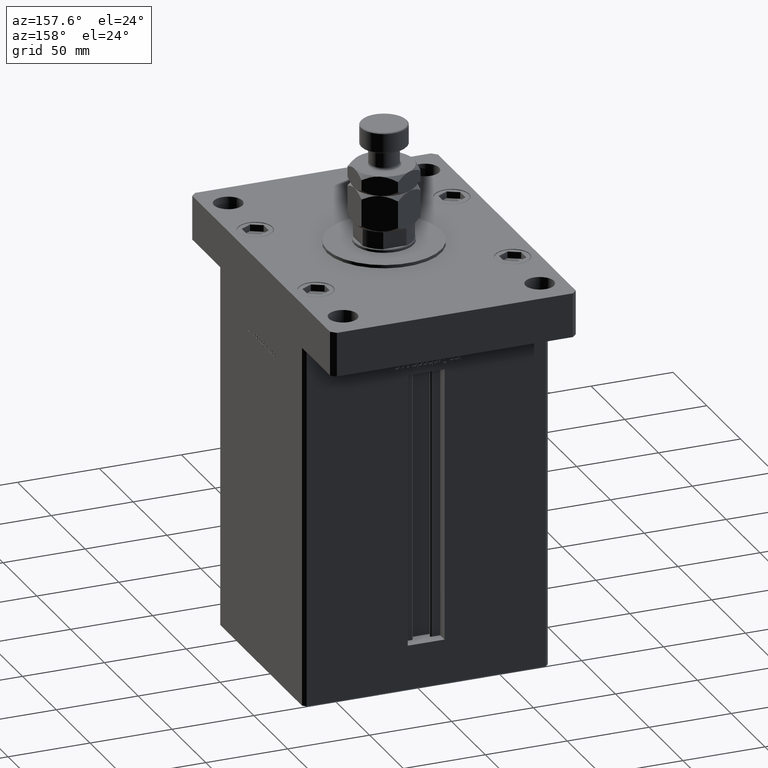
[diagram: clean part render]
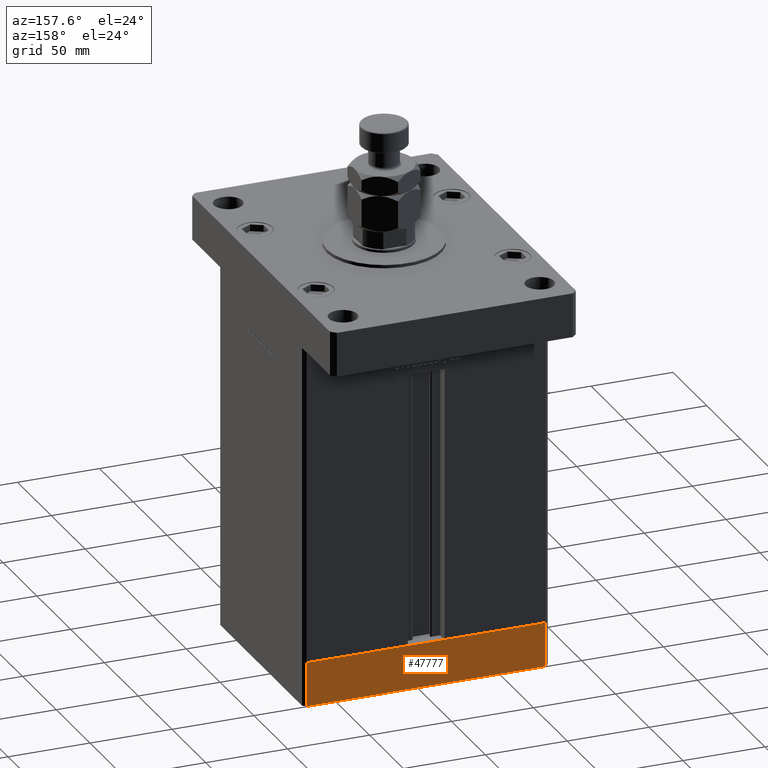
[diagram: same view with one face highlighted and labeled with its STEP entity id]
A machine part, auxiliary view. The second image highlights one B-rep face of the part: STEP entity #47777.
In plain terms, the highlighted planar face has unit normal (0, 1, 0).
Its self-contained STEP definition (entity closure, byte-faithful):
#5694 = DIRECTION ( 'NONE',  ( -1.000000000000000000, -1.901066822988282689E-16, 0.000000000000000000 ) ) ;
#6124 = CARTESIAN_POINT ( 'NONE',  ( -73.00000000000001421, 62.49999999999998579, -27.00000000000000000 ) ) ;
#7137 = ORIENTED_EDGE ( 'NONE', *, *, #36986, .F. ) ;
#7617 = DIRECTION ( 'NONE',  ( -1.000000000000000000, -1.901066822988282936E-16, 0.000000000000000000 ) ) ;
#8433 = DIRECTION ( 'NONE',  ( -1.901066822988282936E-16, 1.000000000000000000, 0.000000000000000000 ) ) ;
#9602 = VECTOR ( 'NONE', #5694, 1000.000000000000000 ) ;
#11948 = CARTESIAN_POINT ( 'NONE',  ( -73.00000000000001421, 62.49999999999998579, 0.000000000000000000 ) ) ;
#13384 = CARTESIAN_POINT ( 'NONE',  ( 72.99999999999992895, 62.50000000000001421, -27.00000000000000000 ) ) ;
#14807 = VECTOR ( 'NONE', #18171, 1000.000000000000000 ) ;
#16231 = EDGE_CURVE ( 'NONE', #44590, #47195, #38161, .T. ) ;
#18171 = DIRECTION ( 'NONE',  ( 0.000000000000000000, 0.000000000000000000, 1.000000000000000000 ) ) ;
#19366 = DIRECTION ( 'NONE',  ( -1.000000000000000000, -1.901066822988282689E-16, 0.000000000000000000 ) ) ;
#20024 = EDGE_CURVE ( 'NONE', #49528, #31752, #40885, .T. ) ;
#25500 = FACE_OUTER_BOUND ( 'NONE', #44875, .T. ) ;
#26105 = ORIENTED_EDGE ( 'NONE', *, *, #20024, .T. ) ;
#27592 = VECTOR ( 'NONE', #50650, 1000.000000000000000 ) ;
#29055 = EDGE_CURVE ( 'NONE', #31752, #47195, #31570, .T. ) ;
#31197 = ORIENTED_EDGE ( 'NONE', *, *, #29055, .T. ) ;
#31570 = LINE ( 'NONE', #6124, #14807 ) ;
#31752 = VERTEX_POINT ( 'NONE', #51135 ) ;
#33877 = LINE ( 'NONE', #51751, #27592 ) ;
#36986 = EDGE_CURVE ( 'NONE', #49528, #44590, #33877, .T. ) ;
#37853 = ORIENTED_EDGE ( 'NONE', *, *, #16231, .F. ) ;
#38161 = LINE ( 'NONE', #52376, #9602 ) ;
#38469 = CARTESIAN_POINT ( 'NONE',  ( 72.99999999999992895, 62.50000000000001421, 0.000000000000000000 ) ) ;
#40885 = LINE ( 'NONE', #53438, #42301 ) ;
#42149 = AXIS2_PLACEMENT_3D ( 'NONE', #54830, #8433, #7617 ) ;
#42301 = VECTOR ( 'NONE', #19366, 1000.000000000000000 ) ;
#44590 = VERTEX_POINT ( 'NONE', #38469 ) ;
#44875 = EDGE_LOOP ( 'NONE', ( #37853, #7137, #26105, #31197 ) ) ;
#46467 = PLANE ( 'NONE',  #42149 ) ;
#47195 = VERTEX_POINT ( 'NONE', #11948 ) ;
#47777 = ADVANCED_FACE ( 'NONE', ( #25500 ), #46467, .T. ) ;
#49528 = VERTEX_POINT ( 'NONE', #13384 ) ;
#50650 = DIRECTION ( 'NONE',  ( 0.000000000000000000, 0.000000000000000000, 1.000000000000000000 ) ) ;
#51135 = CARTESIAN_POINT ( 'NONE',  ( -73.00000000000001421, 62.49999999999998579, -27.00000000000000000 ) ) ;
#51751 = CARTESIAN_POINT ( 'NONE',  ( 72.99999999999992895, 62.50000000000001421, -27.00000000000000000 ) ) ;
#52376 = CARTESIAN_POINT ( 'NONE',  ( 72.99999999999992895, 62.50000000000001421, 0.000000000000000000 ) ) ;
#53438 = CARTESIAN_POINT ( 'NONE',  ( 72.99999999999992895, 62.50000000000001421, -27.00000000000000000 ) ) ;
#54830 = CARTESIAN_POINT ( 'NONE',  ( 72.99999999999992895, 62.50000000000001421, -27.00000000000000000 ) ) ;